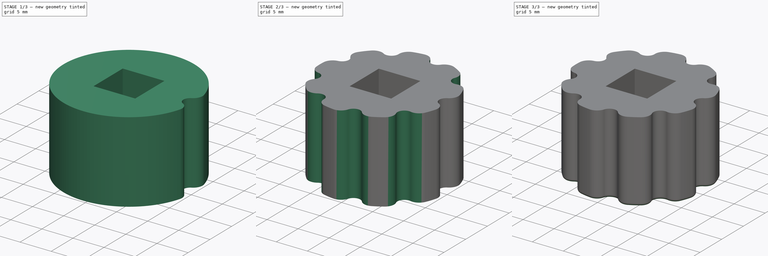
[diagram: build sequence overview — one tinted view per stage of 3, left to right]
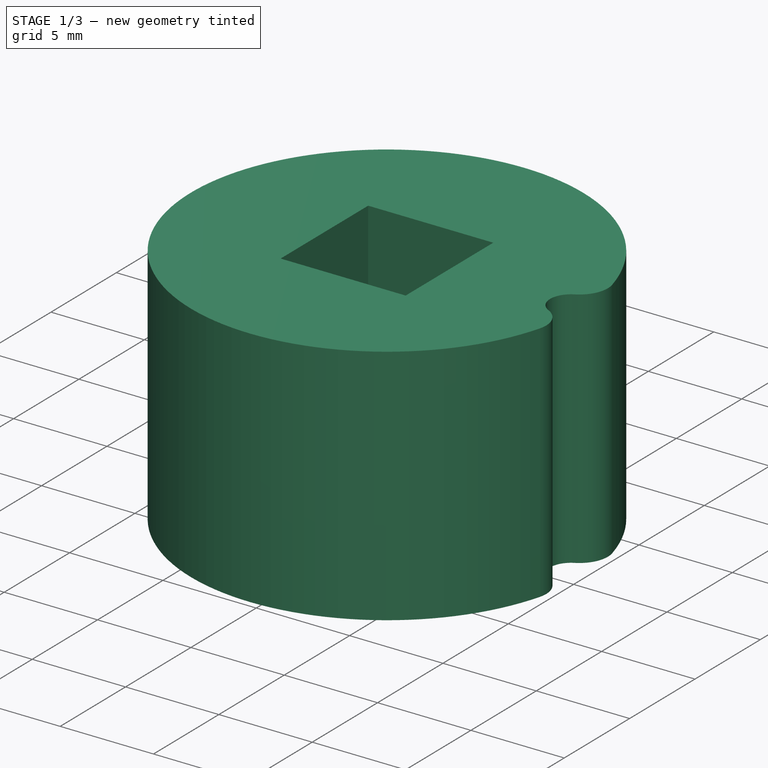
[diagram: stage 1 of 3 — iso view after this stage's code; geometry added in this stage tinted green]
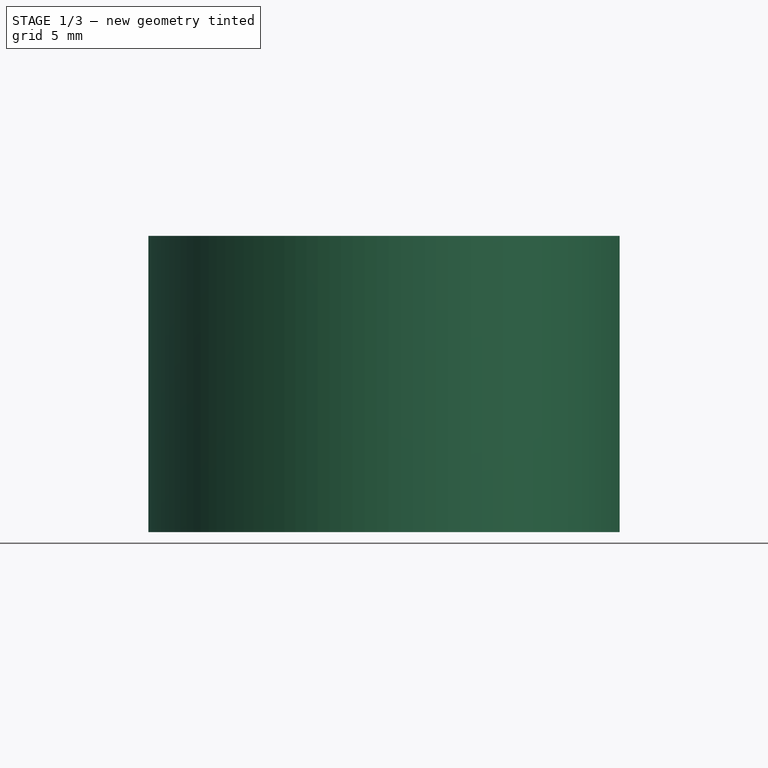
[diagram: stage 1 of 3 — front view after this stage's code; geometry added in this stage tinted green]
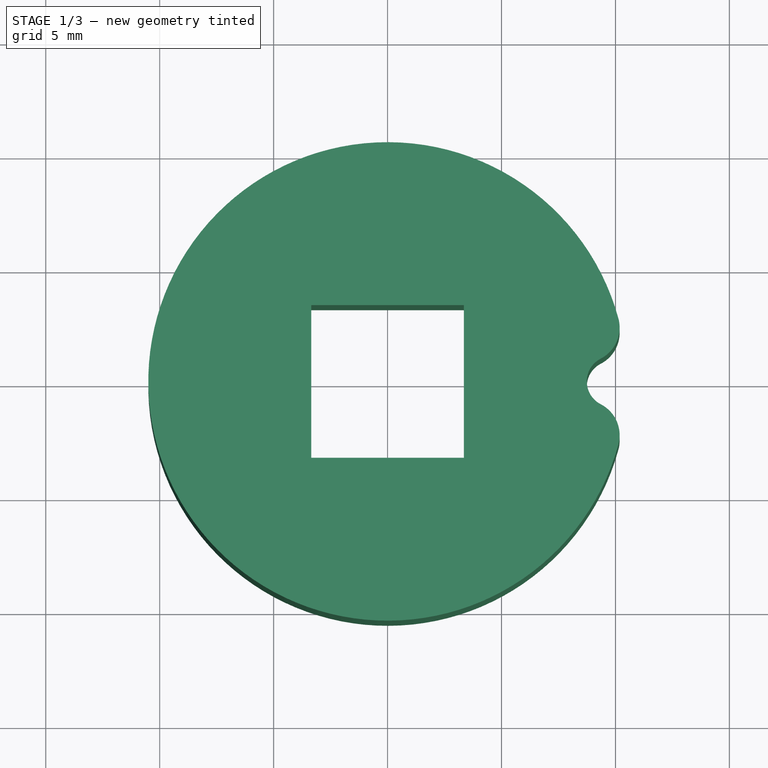
[diagram: stage 1 of 3 — top view after this stage's code; geometry added in this stage tinted green]
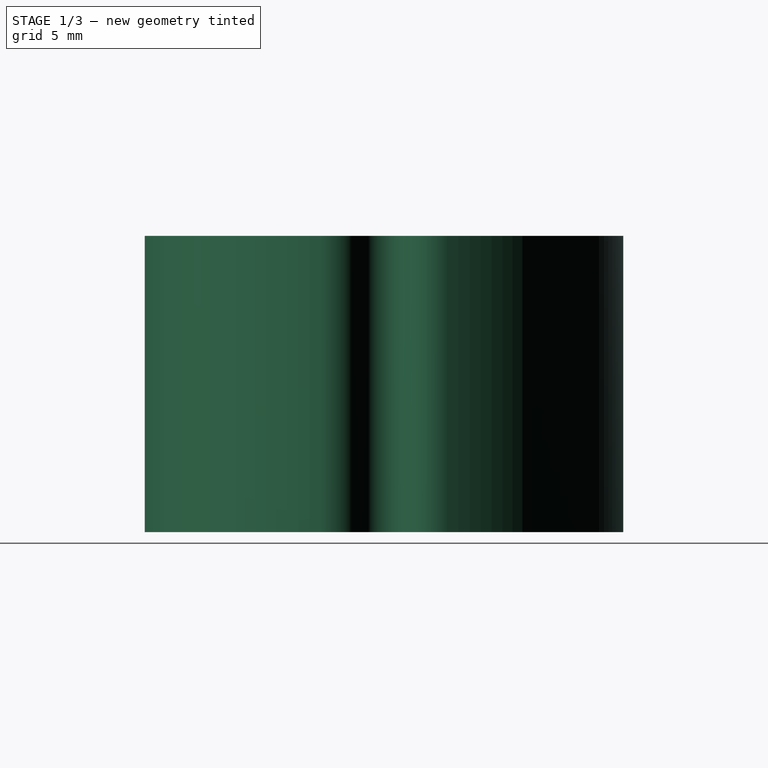
[diagram: stage 1 of 3 — right view after this stage's code; geometry added in this stage tinted green]
FCSTD DOCUMENT  (FreeCAD 0.20R27319 (Git))
Label: StopORingKnob
License: All rights reserved
LicenseURL: http://en.wikipedia.org/wiki/All_rights_reserved
objects: Sketcher::SketchObject×3, PartDesign::Pocket×2, PartDesign::Pad×1, PartDesign::PolarPattern×1, PartDesign::Fillet×1, PartDesign::Body×1
note: 13 computed .brp shape members not serialized (recipe doc carries the construction recipe); baked Part::Feature solids carry a one-line shape summary decoded from their .brp
EXTERNAL_REF file=SharedDimensions.FCStd obj=Spreadsheet

FEATURE [Sketcher::SketchObject] Sketch
  FullyConstrained = true
  MapMode = 5
  Support = -> [XY_Plane002]
  expr: Constraints[0] = SharedDimensions#Spreadsheet.HoleDiameter + 1
  expr: Constraints[12] = SharedDimensions#Spreadsheet.BoltSquareDiameter + SharedDimensions#Spreadsheet.BoltClearance
  sketch-geometry (6):
    g0: Circle CenterX=0 CenterY=0 CenterZ=0 NormalX=0 NormalY=0 NormalZ=1 AngleXU=0 Radius=10.5
    g1: LineSegment StartX=-3.35 StartY=3.35 StartZ=0 EndX=-3.35 EndY=-3.35 EndZ=0
    g2: LineSegment StartX=-3.35 StartY=-3.35 StartZ=0 EndX=3.35 EndY=-3.35 EndZ=0
    g3: LineSegment StartX=3.35 StartY=-3.35 StartZ=0 EndX=3.35 EndY=3.35 EndZ=0
    g4: LineSegment StartX=3.35 StartY=3.35 StartZ=0 EndX=-3.35 EndY=3.35 EndZ=0
    g5: GeomPoint X=0 Y=0 Z=0
  constraints (14):
    c: Diameter(g0) = 21
    c: Coincident(g1,g2)
    c: Coincident(g2,g3)
    c: Coincident(g3,g4)
    c: Coincident(g4,g1)
    c: Horizontal(g2)
    c: Horizontal(g4)
    c: Vertical(g1)
    c: Vertical(g3)
    c: Symmetric(g2,g1,g5)
    c: Coincident(g5,g0)
    c: Equal(g4,g3)
    c: Distance(g4) = 6.7
    c: Coincident(g0,g-1)
FEATURE [PartDesign::Pad] Pad  label="Base"
  Direction = (0,0,1)
  Length = 13
  Length2 = 10
  Profile = -> Sketch
  ReferenceAxis = -> Sketch [N_Axis]
  Type = 0
FEATURE [Sketcher::SketchObject] Sketch002
  ExternalGeometry = -> [Sketch]
  FullyConstrained = false
  MapMode = 5
  Support = -> [XY_Plane002]
  sketch-geometry (6):
    g0: LineSegment StartX=0.788889 StartY=-0.00446769 StartZ=0 EndX=10.129 EndY=2.76665 EndZ=0
    g1: LineSegment StartX=0.788889 StartY=-0.00446769 StartZ=0 EndX=10.129 EndY=-2.76665 EndZ=0
    g2: ArcOfCircle CenterX=10.5 CenterY=-1e-16 CenterZ=0 NormalX=0 NormalY=0 NormalZ=1 AngleXU=0 Radius=2.79142 StartAngle=4.57907 EndAngle=7.9873
    g3: ArcOfCircle CenterX=8.65041 CenterY=2.3628 CenterZ=0 NormalX=0 NormalY=0 NormalZ=1 AngleXU=0 Radius=1.5327 StartAngle=5.18842 EndAngle=6.54982
    g4: ArcOfCircle CenterX=8.65041 CenterY=-2.3628 CenterZ=0 NormalX=0 NormalY=0 NormalZ=1 AngleXU=0 Radius=1.5327 StartAngle=6.01655 EndAngle=7.37795
    g5: ArcOfCircle CenterX=9.86863 CenterY=-3e-16 CenterZ=0 NormalX=0 NormalY=0 NormalZ=1 AngleXU=0 Radius=1.12566 StartAngle=2.04683 EndAngle=4.23635
  constraints (14):
    c: Coincident(g1,g0)
    c: Coincident(g0,g2)
    c: Coincident(g1,g2)
    c: PointOnObject(g2,g-3)
    c: Angle(g1,g0) = 0.575959
    c: PointOnObject(g2,g-3)
    c: Symmetric(g2,g2,g-1)
    c: Coincident(g3,g2)
    c: Coincident(g4,g2)
    c: Tangent(g3,g-3)
    c: Tangent(g4,g-3)
    c: Symmetric(g3,g4,g-1)
    c: Coincident(g5,g4)
    c: Tangent(g5,g3) = 1.5708
FEATURE [PartDesign::Pocket] Pocket001  label="Flutes"
  BaseFeature = -> Pad
  Direction = (0,0,-1)
  Length = 5
  Length2 = 5
  Profile = -> Sketch002
  ReferenceAxis = -> Sketch002 [N_Axis]
  Reversed = true
  Type = 1
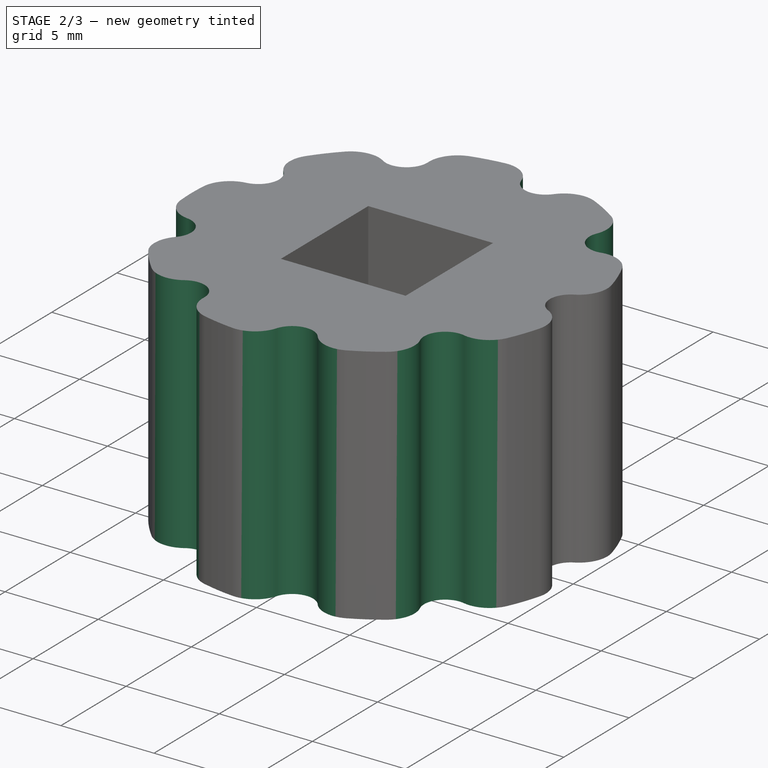
[diagram: stage 2 of 3 — iso view after this stage's code; geometry added in this stage tinted green]
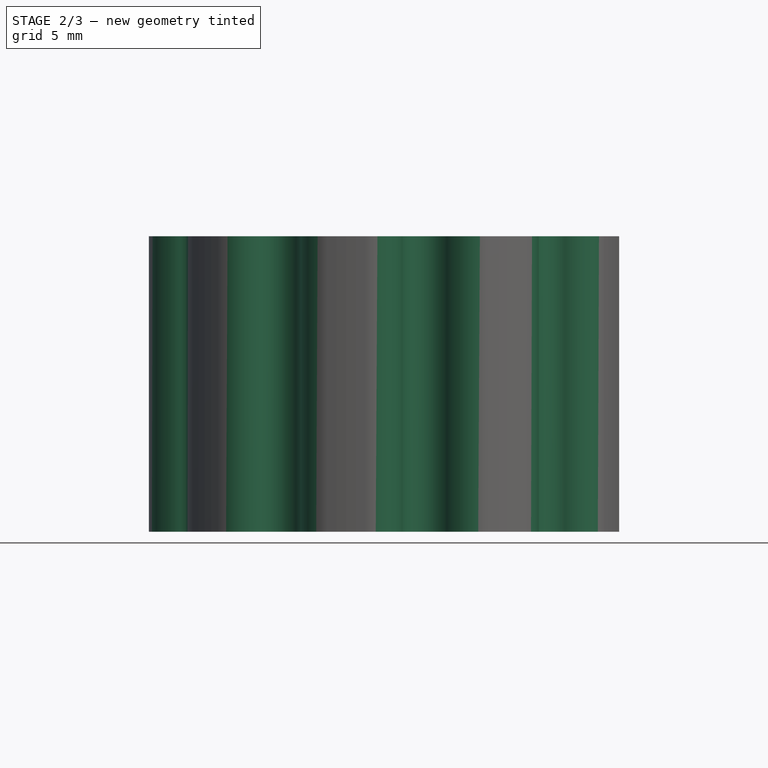
[diagram: stage 2 of 3 — front view after this stage's code; geometry added in this stage tinted green]
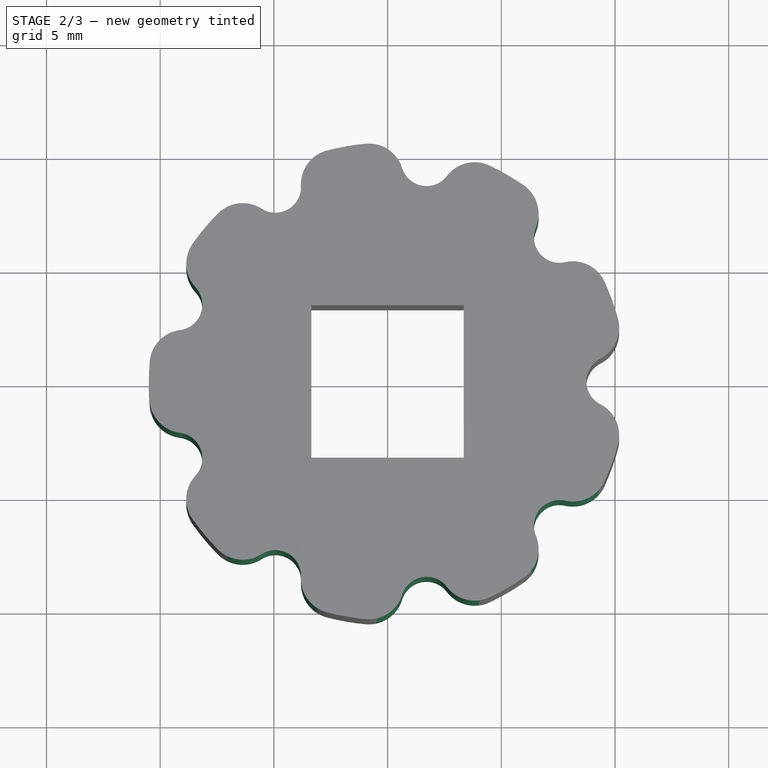
[diagram: stage 2 of 3 — top view after this stage's code; geometry added in this stage tinted green]
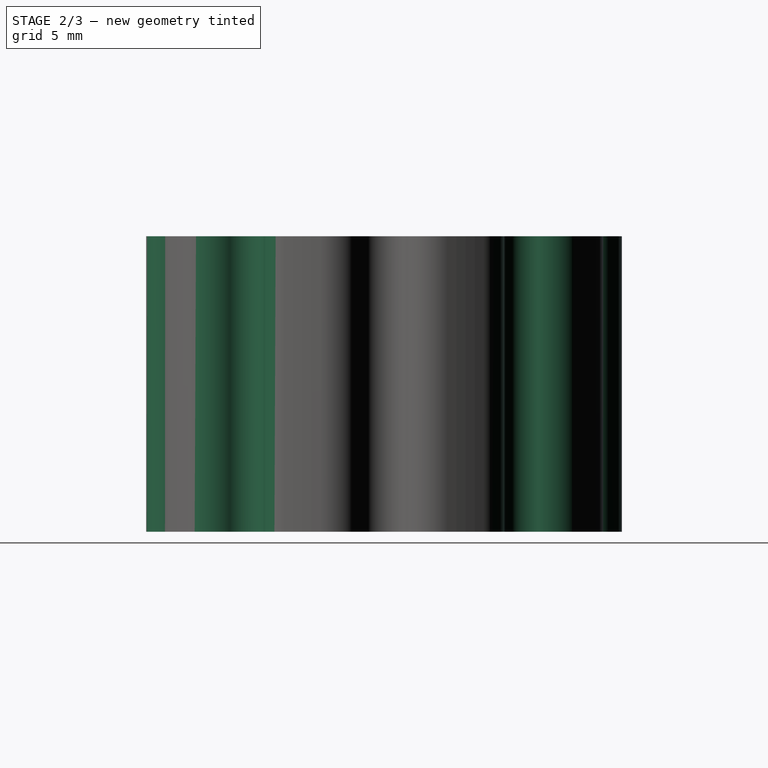
[diagram: stage 2 of 3 — right view after this stage's code; geometry added in this stage tinted green]
FEATURE [PartDesign::PolarPattern] PolarPattern
  Angle = 360
  Axis = -> Sketch002 [N_Axis]
  BaseFeature = -> Pocket001
  Occurrences = 9
  Originals = -> [Pocket001]
  Overlap = 0
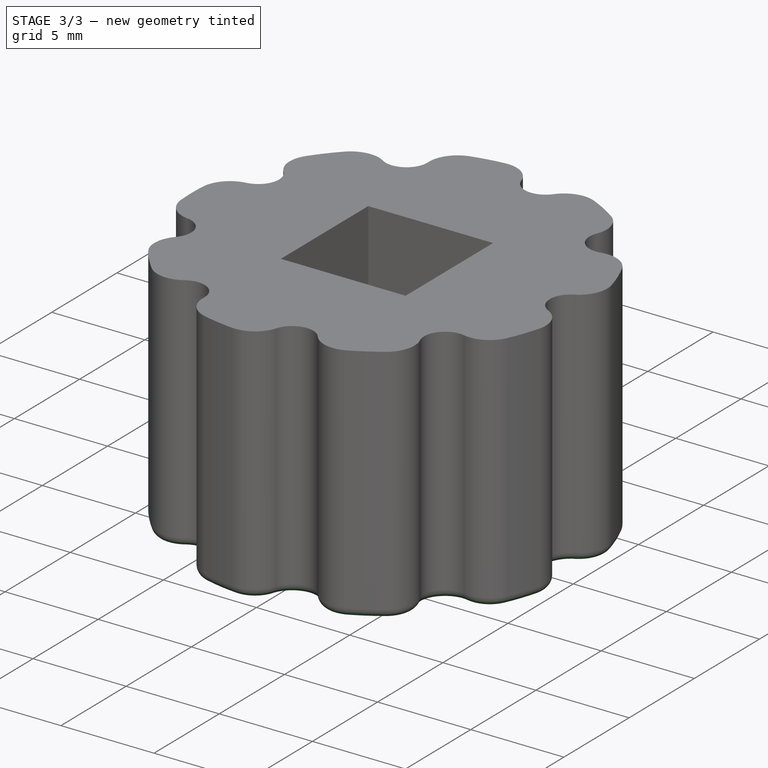
[diagram: stage 3 of 3 — iso view after this stage's code; geometry added in this stage tinted green]
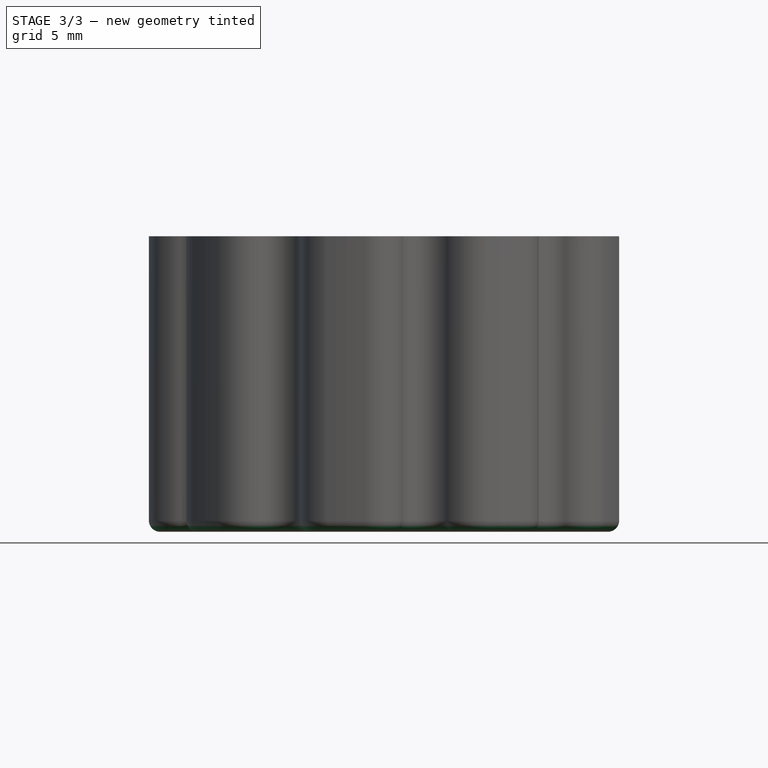
[diagram: stage 3 of 3 — front view after this stage's code; geometry added in this stage tinted green]
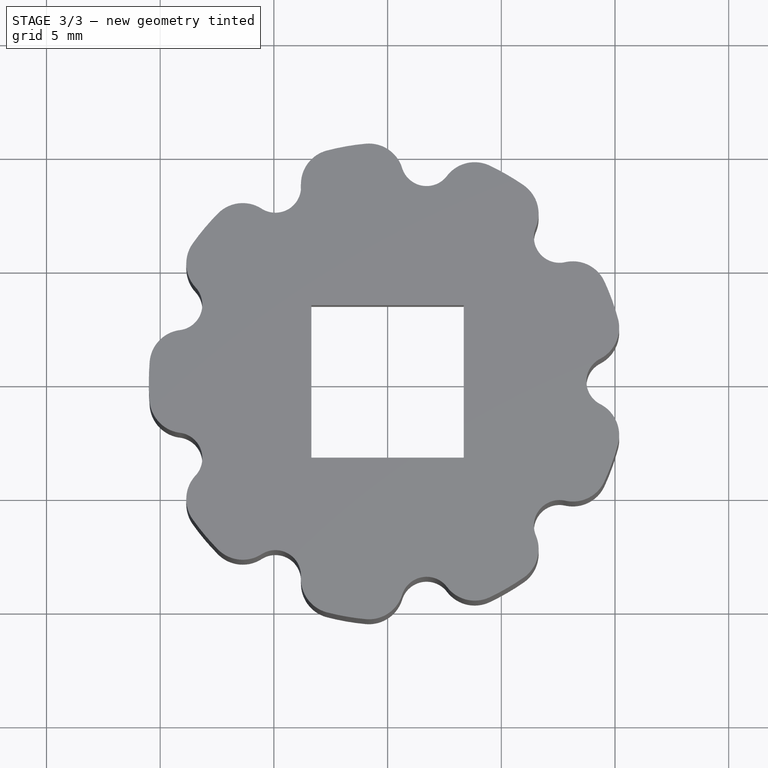
[diagram: stage 3 of 3 — top view after this stage's code; geometry added in this stage tinted green]
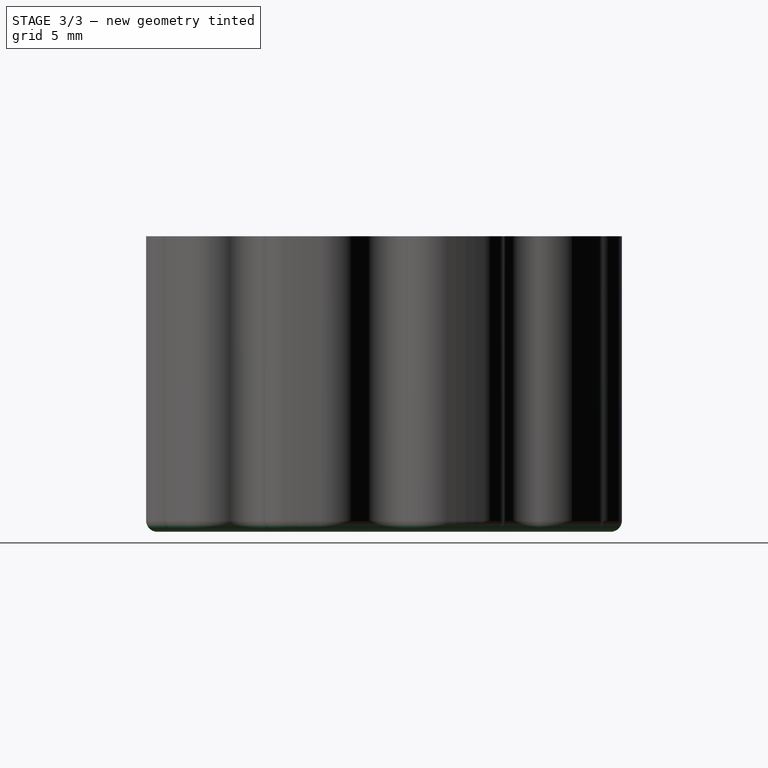
[diagram: stage 3 of 3 — right view after this stage's code; geometry added in this stage tinted green]
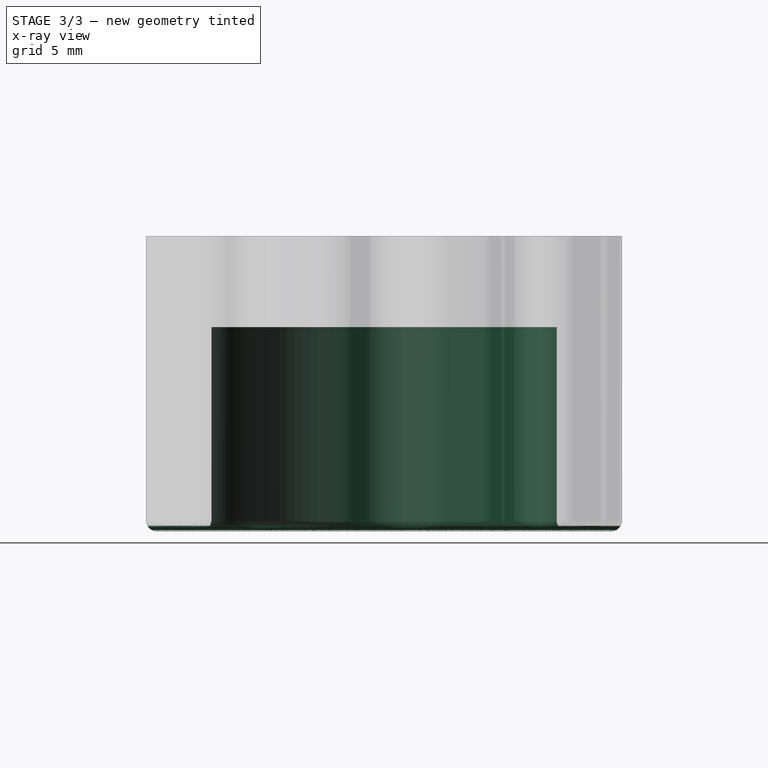
[diagram: stage 3 of 3 — x-ray composite at the right view; earlier geometry ghosted, this stage's added geometry solid]
FEATURE [Sketcher::SketchObject] Sketch003
  FullyConstrained = true
  MapMode = 5
  Support = -> [XY_Plane002]
  expr: Constraints[1] = SharedDimensions#Spreadsheet.BoltDomeDiameter
  sketch-geometry (1):
    g0: Circle CenterX=0 CenterY=0 CenterZ=0 NormalX=0 NormalY=0 NormalZ=1 AngleXU=0 Radius=7.6
  constraints (2):
    c: Coincident(g0,g-1)
    c: Diameter(g0) = 15.2
FEATURE [PartDesign::Pocket] Pocket  label="Dome Recess"
  BaseFeature = -> PolarPattern
  Direction = (0,0,-1)
  Length = 9
  Length2 = 5
  Profile = -> Sketch003
  ReferenceAxis = -> Sketch003 [N_Axis]
  Reversed = true
  Type = 0
FEATURE [PartDesign::Fillet] Fillet
  Base = -> Pocket [Face2]
  BaseFeature = -> Pocket
  Radius = 0.5
  SupportTransform = false
FEATURE [PartDesign::Body] Body002  label="Body"
  Group = -> [Sketch,Pad,Sketch003,Sketch002,Pocket001,PolarPattern,Pocket,Fillet]
  Origin = -> Origin002
  Tip = -> Fillet
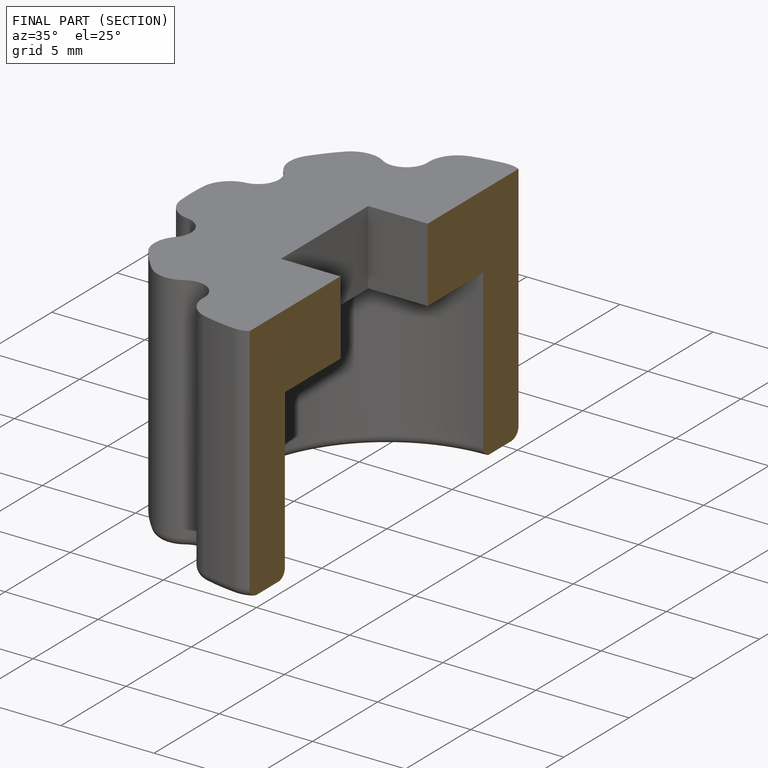
[diagram: finished part — half-section view (interior)]
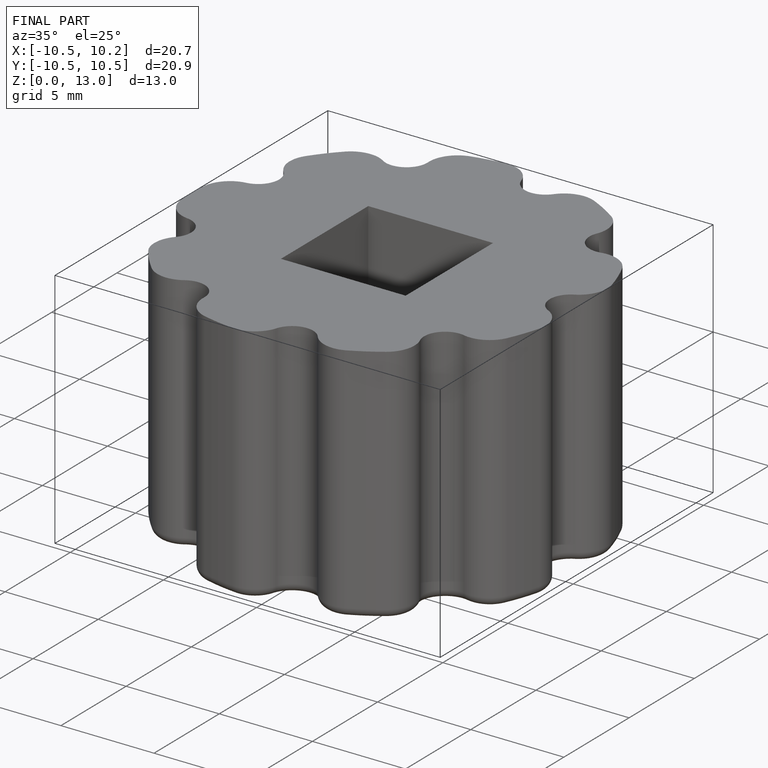
[diagram: finished part — iso view with bounding-box wireframe]
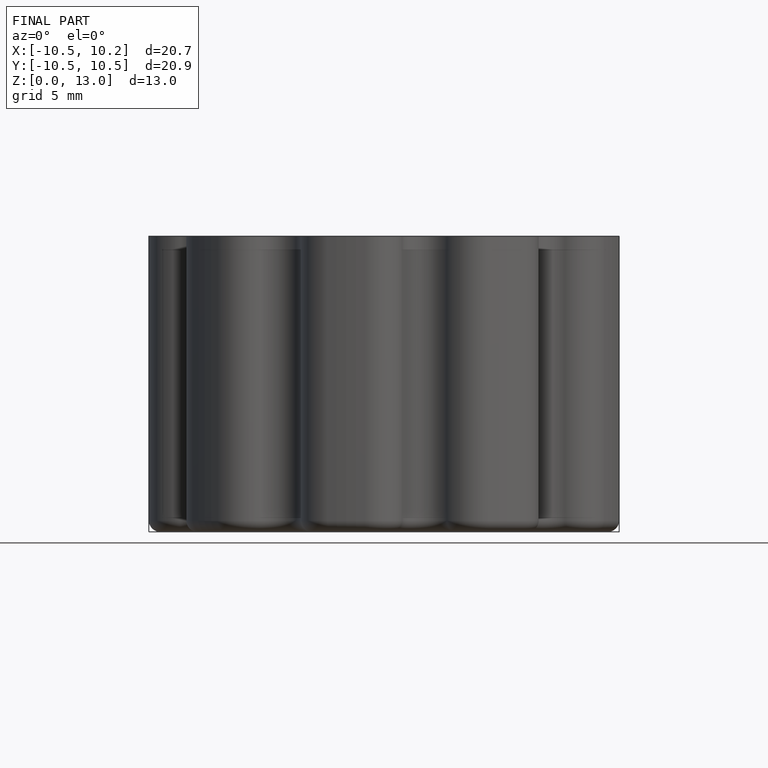
[diagram: finished part — front view with bounding-box wireframe]
